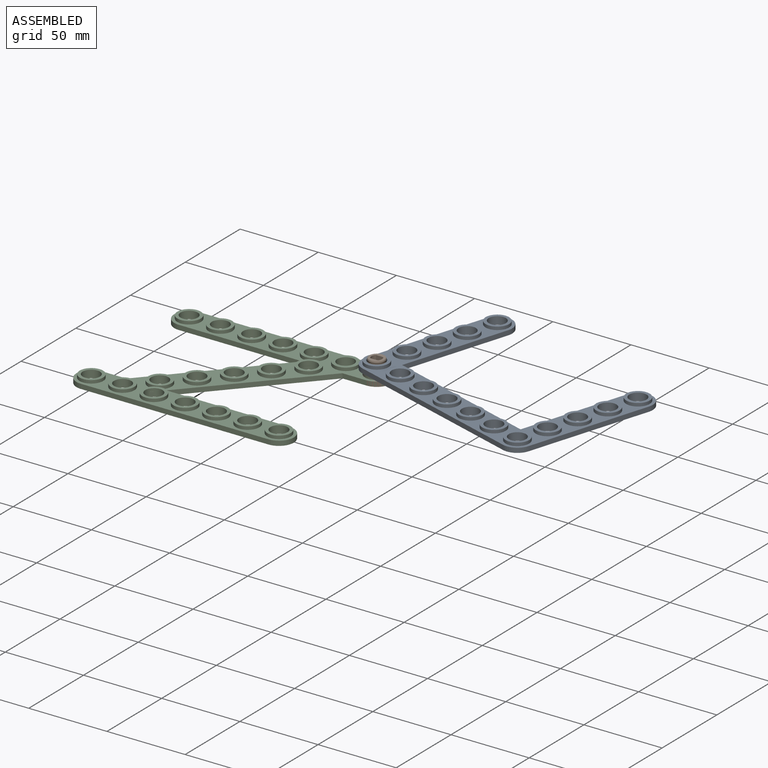
[diagram: assembled view]
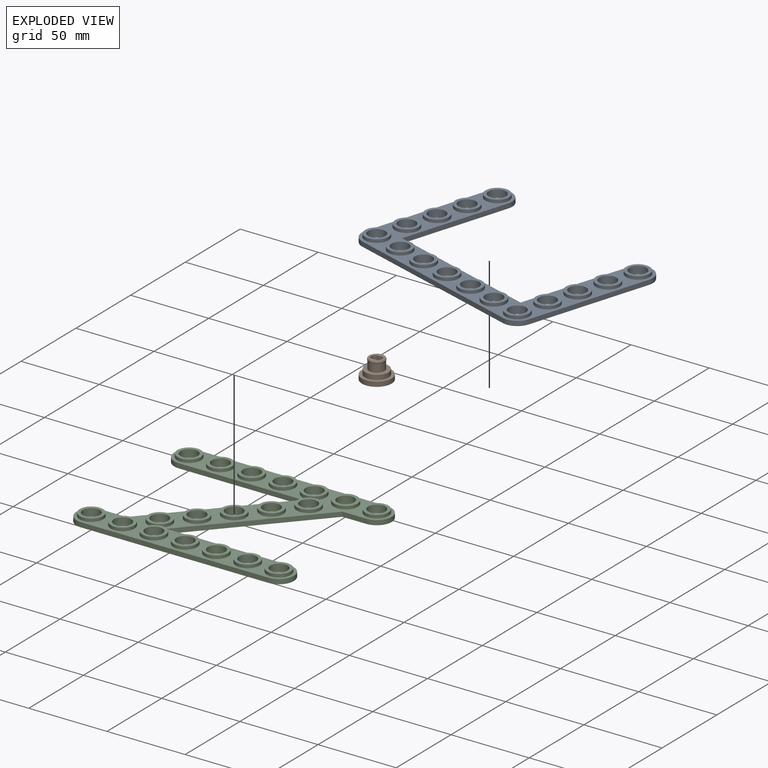
[diagram: exploded view]
GUIDED TOUR — MATED ASSEMBLY (Onshape document 58288718367dbf10c56b6f8b, AutoMate assembly 58288718367dbf10c56b6f8b_a2710cffdd7be8ced2f15b39_a3ffcce9a0fe1f9f7f66f083_default)

This assembly has 3 components, labeled P0..P2 below (a component is one placed occurrence of a part; the same part can appear more than once), held together by 2 mates. A mate is a constraint between two components; its type names the relative motion it leaves free:
  FASTENED — locks the two components together rigidly (no relative motion),
  REVOLUTE — leaves rotation about the listed axis free (a hinge).
Axis/direction vectors are unit vectors and 'through' points are millimeter coordinates, both in the assembly's world frame.

MATES
  1. FASTENED "Fastened 1": P2 <-> P1, direction (0.000, 0.000, -1.000) through (120.00, 89.30, 0.00) mm
  2. REVOLUTE "Revolute 1": P1 <-> P0, axis (0.000, 0.000, 1.000) through (120.00, 89.30, 6.00) mm

ASSEMBLY ORDER
  1. P1 — the base component [order verified]
  2. P0 [order verified]
  3. P2 [order verified]
(P0, P2 verified with a relaxed clearance tolerance: the source model stores slight part interference there.)
Order-tag legend:
  [order verified] — this step's position reverses a verified removal order: the component was checked to insert without passing through the ones already placed.

Of the 3 components, 1 carries the full construction recipe — the FeatureScript program that regenerates the part's solid from scratch; the rest are supplied as boundary geometry only.
Each toured component is shown spotlighted twice — in the assembled view, then in the exploded view, where a leader line traces a displaced component back to its assembled socket (saturated green if recipe-attached, orange if geometry-only; every other component desaturated gray) — followed by its recipe or geometry summary and the mates that hold it.
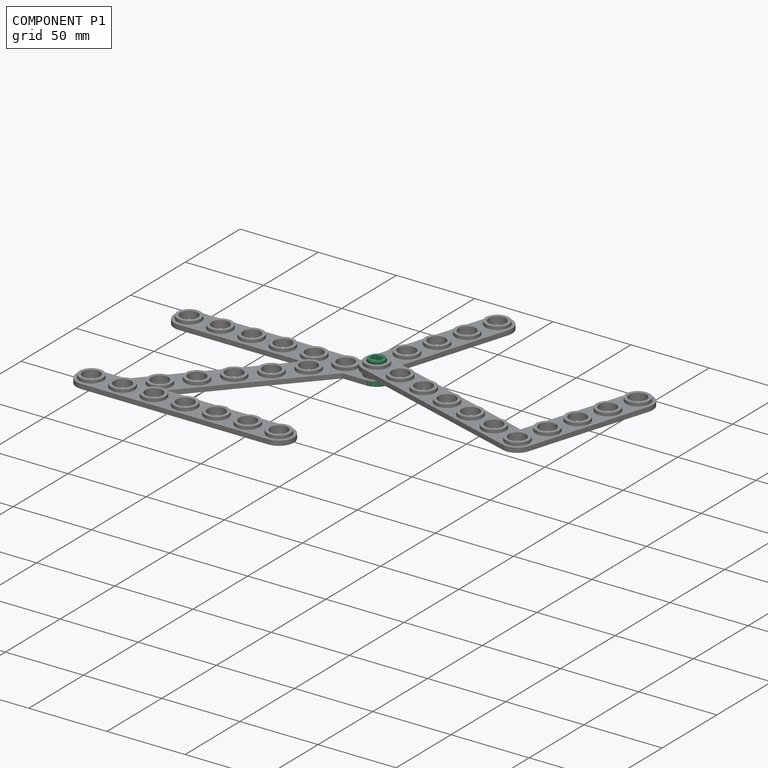
[diagram: component P1 — assembled]
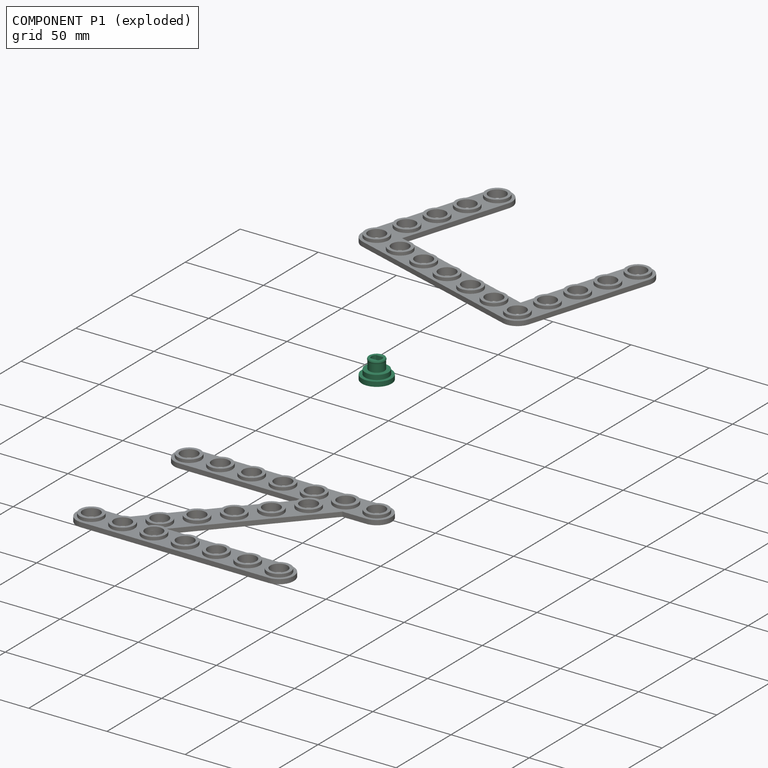
[diagram: component P1 — exploded]
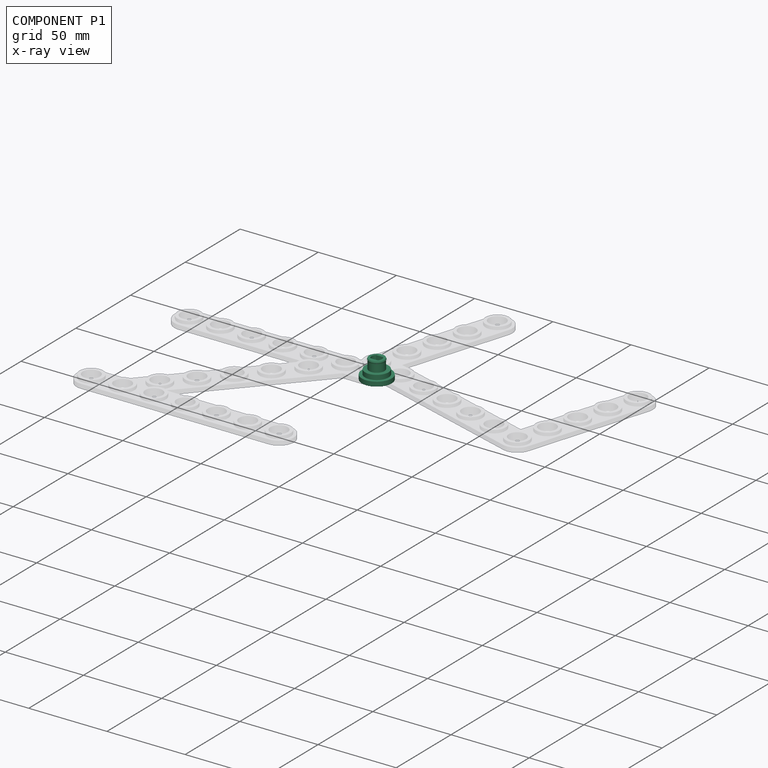
[diagram: component P1 — x-ray view]
COMPONENT P1 — recipe-attached (CADFS 00326685, mesh-verified: the recipe's output STEP matches this component's geometry to below the mesh-comparison resolution (tessellation chordal tolerance ~0.0444 mm)).
Held by: FASTENED mate "Fastened 1" to P2; REVOLUTE mate "Revolute 1" to P0.
Construction recipe (FeatureScript — the CAD program that rebuilds this solid; sketch coordinates are in the units given by the * unit suffixes, e.g. mm):

FeatureScript 1549;
import(path : "onshape/std/geometry.fs", version : "1549.0");
import(path : "onshape/std/common.fs", version : "1549.0");
const mm = millimeter;
const VERTEX = EntityType.VERTEX;
const EDGE = EntityType.EDGE;
const FACE = EntityType.FACE;
const BODY = EntityType.BODY;
function v(x, y){return vector(x, y);}
function OD(order){return orderDisambiguation(order);}
function OSD(set){return originalSetDisambiguation(set);}
function TD(topology){return topologyDisambiguation(topology);}
function TDD(query){return trueDependencyDisambiguation(query);}
function sQuery(a, b, c) {return sketchEntityQuery(a, b, c);}

annotation { "Feature Type Name" : "Feature", "Feature Type Description" : "" }
export const myFeature = defineFeature(function(context is Context, id is Id, definition is map)
    precondition{}
    {
        {
            assignVariable(context, id + "F0", {"name" : "e", "anyValue" : 3});
        }
        {
            assignVariable(context, id + "F1", {"name" : "h1", "anyValue" : 3});
        }
        {
            assignVariable(context, id + "F2", {"name" : "h2", "anyValue" : 6.5});
        }
        {
            var Q0;
            Q0=qCreatedBy(makeId("Top.planeOp"),FACE);
            var sketch = newSketch(context, id + "F3", { "sketchPlane" : qUnion([Q0])});
            skCircle(sketch, "E0", {"center": v(0, 0) * mm, "radius": 9.5 * mm});
            skCircle(sketch, "E1", {"center": v(0, 0) * mm, "radius": 7.5 * mm});
            skCircle(sketch, "E2", {"center": v(0, 0) * mm, "radius": 4.9 * mm});
            skArc(sketch, "E3", {"start": v(-2.28, 2.45) * mm, "mid": v(-3.35, 0) * mm, "end": v(-2.28, -2.45) * mm});
            skLineSegment(sketch, "E4.bottom", {"start": v(2.28, -2.45) * mm, "end": v(-2.28, -2.45) * mm});
            skLineSegment(sketch, "E4.top", {"start": v(2.28, 2.45) * mm, "end": v(-2.28, 2.45) * mm});
            skArc(sketch, "E5.trimOffspring", {"start": v(2.28, -2.45) * mm, "mid": v(3.35, 0) * mm, "end": v(2.28, 2.45) * mm});
            skPoint(sketch, "E6.orphan", {"position": v(3.35, 2.45) * mm});
            skPoint(sketch, "E7.orphan", {"position": v(3.35, -2.45) * mm});
            skPoint(sketch, "E8.orphan", {"position": v(-3.35, -2.45) * mm});
            skPoint(sketch, "E9.orphan", {"position": v(-3.35, 2.45) * mm});
            skSolve(sketch);
        }
        {
            var Q0;
            Q0=makeQuery(id+"F3.imprint","IMPRINT",FACE,{"disambiguationData":[TD([[makeQuery(id+"F3.imprint","IMPRINT",EDGE,{"derivedFrom":sQuery(id+"F3.wireOp",EDGE,"E0")}),1.0]])]});
            var Q1;
            Q1=makeQuery(id+"F3.imprint","IMPRINT",FACE,{"disambiguationData":[TD([[makeQuery(id+"F3.imprint","IMPRINT",EDGE,{"derivedFrom":sQuery(id+"F3.wireOp",EDGE,"E1")}),1.0]])]});
            var Q2;
            Q2=makeQuery(id+"F3.imprint","IMPRINT",FACE,{"disambiguationData":[TD([[makeQuery(id+"F3.imprint","IMPRINT",EDGE,{"derivedFrom":sQuery(id+"F3.wireOp",EDGE,"E2")}),1.0]])]});
            extrude(context, id + "F4", {"entities" : qUnion([Q0, Q1, Q2]), "depth" : (getVariable(context, 'e')) * mm});
        }
        {
            var Q0;
            Q0=makeQuery(id+"F3.imprint","IMPRINT",FACE,{"disambiguationData":[TD([[makeQuery(id+"F3.imprint","IMPRINT",EDGE,{"derivedFrom":sQuery(id+"F3.wireOp",EDGE,"E1")}),1.0]])]});
            var Q1;
            Q1=makeQuery(id+"F3.imprint","IMPRINT",FACE,{"disambiguationData":[TD([[makeQuery(id+"F3.imprint","IMPRINT",EDGE,{"derivedFrom":sQuery(id+"F3.wireOp",EDGE,"E2")}),1.0]])]});
            extrude(context, id + "F5", {"entities" : qUnion([Q0, Q1]), "operationType" : NewBodyOperationType.ADD, "depth" : (getVariable(context, 'e') + getVariable(context, 'h1')) * mm});
        }
        {
            var Q0;
            Q0=makeQuery(id+"F3.imprint","IMPRINT",FACE,{"disambiguationData":[TD([[makeQuery(id+"F3.imprint","IMPRINT",EDGE,{"derivedFrom":sQuery(id+"F3.wireOp",EDGE,"E2")}),1.0]])]});
            extrude(context, id + "F6", {"entities" : qUnion([Q0]), "operationType" : NewBodyOperationType.ADD, "depth" : (getVariable(context, 'e') + getVariable(context, 'h1') + getVariable(context, 'h2')) * mm});
        }
        {
            var Q0;
            Q0=qCreatedBy(makeId("Front.planeOp"),FACE);
            var sketch = newSketch(context, id + "F7", { "sketchPlane" : qUnion([Q0])});
            skLineSegment(sketch, "E10", {"start": v(0, 0) * mm, "end": v(0, 17.5) * mm, "construction": true});
            skLineSegment(sketch, "E11", {"start": v(-4.9, 6) * mm, "end": v(-4.9, 12.5) * mm});
            skLineSegment(sketch, "E12", {"start": v(4.9, 12.5) * mm, "end": v(4.9, 6) * mm});
            skLineSegment(sketch, "E13.bottom", {"start": v(4.9, 12.5) * mm, "end": v(5.15, 12.5) * mm, "construction": true});
            skLineSegment(sketch, "E13.top", {"start": v(4.9, 11) * mm, "end": v(5.15, 11) * mm, "construction": true});
            skLineSegment(sketch, "E13.left", {"start": v(4.9, 12.5) * mm, "end": v(4.9, 11) * mm, "construction": true});
            skLineSegment(sketch, "E13.right", {"start": v(5.15, 12.5) * mm, "end": v(5.15, 11) * mm, "construction": true});
            skPoint(sketch, "E14", {"position": v(5.15, 11.75) * mm});
            skLineSegment(sketch, "E15", {"start": v(4.9, 12.5) * mm, "end": v(5.15, 11.75) * mm});
            skLineSegment(sketch, "E16", {"start": v(5.15, 11.75) * mm, "end": v(4.9, 11) * mm});
            skLineSegment(sketch, "E17", {"start": v(4.9, 11) * mm, "end": v(4.9, 12.5) * mm});
            skSolve(sketch);
        }
        {
            var Q0;
            Q0=makeQuery(id+"F7.imprint","IMPRINT",FACE,{"disambiguationData":[TD([[makeQuery(id+"F7.imprint","IMPRINT",EDGE,{"derivedFrom":sQuery(id+"F7.wireOp",EDGE,"E15")}),-1.0]])]});
            var Q1;
            Q1=sQuery(id+"F7.wireOp",EDGE,"E10");
            revolve(context, id + "F8", {"operationType" : NewBodyOperationType.ADD, "entities" : qUnion([Q0]), "axis" : qUnion([Q1]), "revolveType" : RevolveType.FULL});
        }
        {
            var Q0;
            Q0=makeQuery(id+"F6.opExtrude","CAP_FACE",FACE,{"disambiguationData":[OSD([sQuery(id+"F3.wireOp",EDGE,"E2"),sQuery(id+"F3.wireOp",EDGE,"E3"),sQuery(id+"F3.wireOp",EDGE,"E4.bottom"),sQuery(id+"F3.wireOp",EDGE,"E4.top"),sQuery(id+"F3.wireOp",EDGE,"E5.trimOffspring")])],"isStart":false});
            cPlane(context, id + "F9", {"entities" : qUnion([Q0]), "cplaneType" : CPlaneType.OFFSET, "offset" : 0 * mm, "width" : 150 * mm, "height" : 150 * mm});
        }
    });
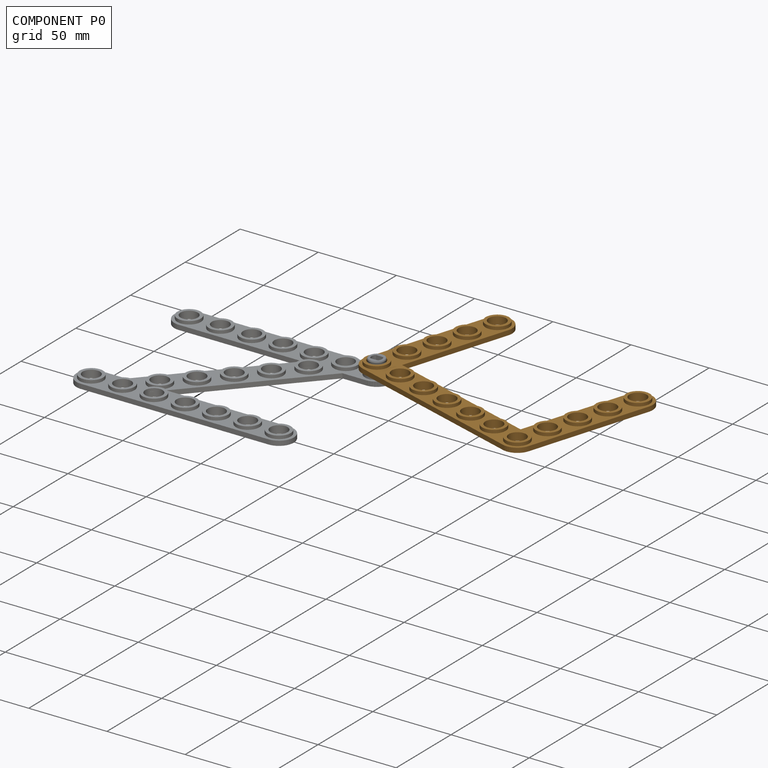
[diagram: component P0 — assembled]
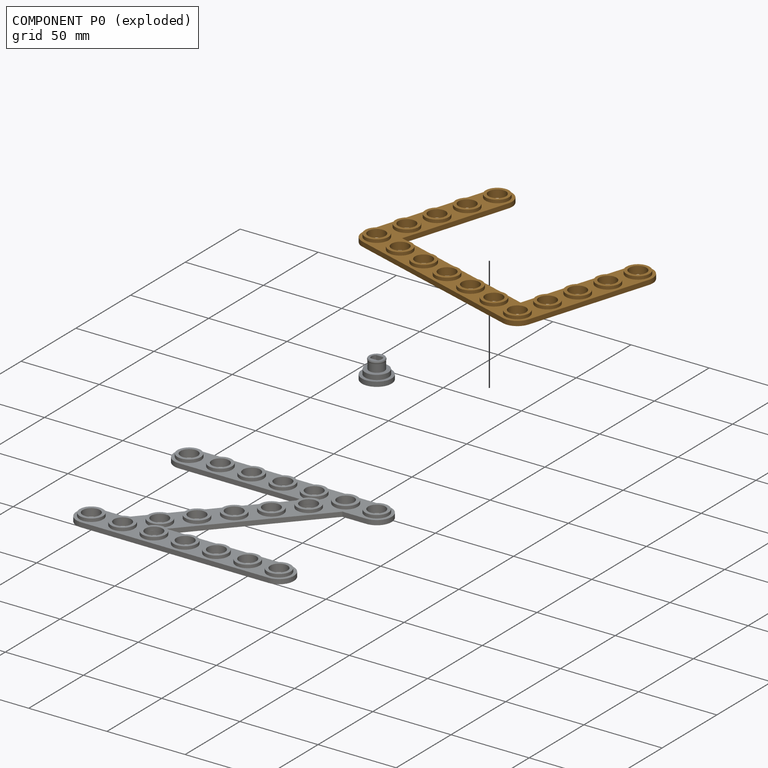
[diagram: component P0 — exploded]
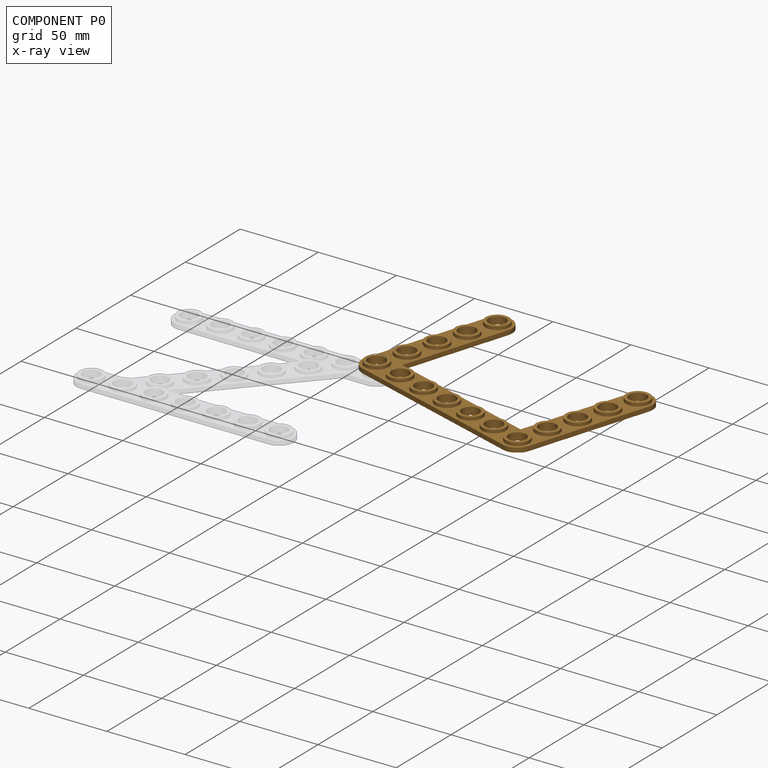
[diagram: component P0 — x-ray view]
COMPONENT P0 — geometry summary (no construction recipe available for this part):
  bounding box: 139.0 x 99.0 x 5.0 mm
  B-rep topology: 1 solid, 57 faces, 240 edges
  volume: 14868 mm^3 (22% of its bounding box)
  symmetry: mirror-symmetric across its x mid-plane
Held by: REVOLUTE mate "Revolute 1" to P1.
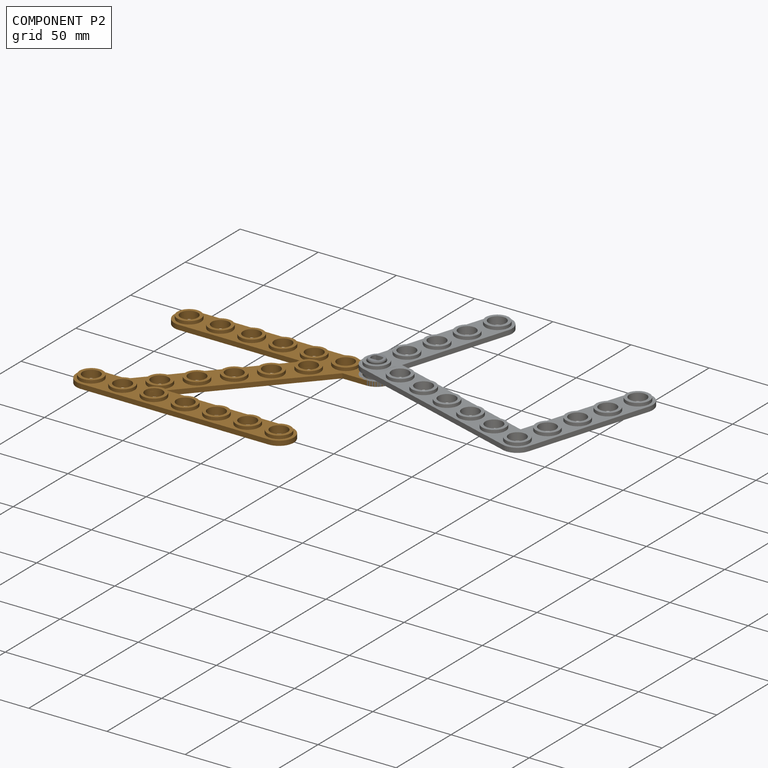
[diagram: component P2 — assembled]
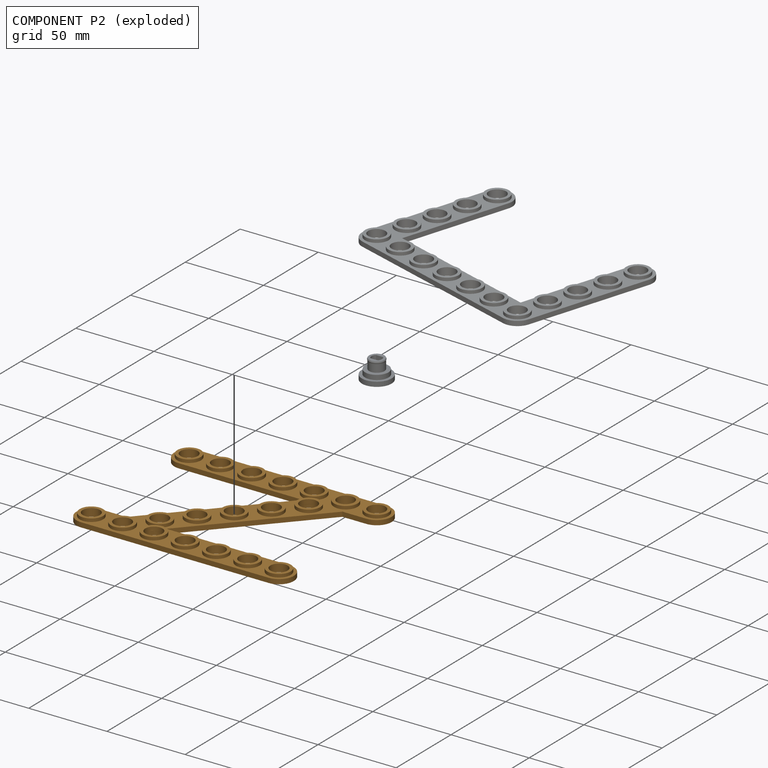
[diagram: component P2 — exploded]
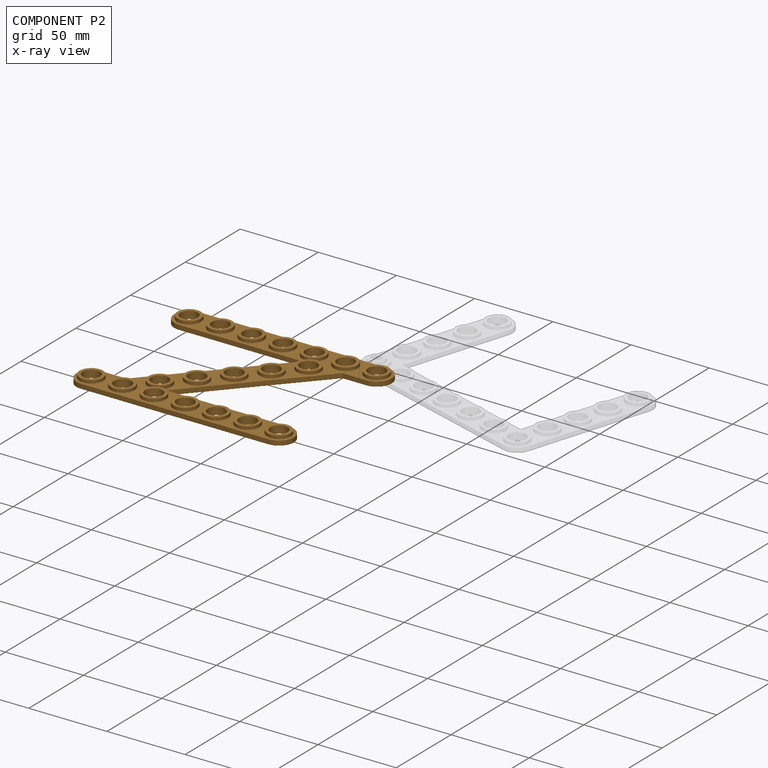
[diagram: component P2 — x-ray view]
COMPONENT P2 — geometry summary (no construction recipe available for this part):
  bounding box: 139.0 x 108.3 x 5.0 mm
  B-rep topology: 1 solid, 77 faces, 336 edges
  volume: 18492 mm^3 (25% of its bounding box)
  symmetry: 2-fold rotationally symmetric about the z axis
Held by: FASTENED mate "Fastened 1" to P1.
PROVENANCE & LICENSES
Assembly (occurrences, transforms, mates, per-part STEP geometry): AutoMate dataset, Zenodo record 7776208, CC0.
Construction recipes: CADFS (HuggingFace VladPyatov/CADFS, CC-BY-4.0, layered over the ABC dataset), FeatureScript reconstruction programs keyed by ABC model id.
Join: ABC meta listings map ABC model id -> Onshape documentId; within a shared document, parts are matched by geometric signature (bounding-box dims + volume at 0.1% relative tolerance, exact B-rep face/solid counts).
Verification: 1 of this assembly's 3 components carries a recipe attachment, and every attachment is mesh-verified: the CADFS STEP and the AutoMate member STEP were compared as meshes in their shared local frame (symmetric sampled-point-to-mesh distance); worst across the 1 attachment: below the mesh-comparison resolution (tessellation chordal tolerance ~0.0444 mm) on a 30 mm part.
Renders: orthographic iso camera (az 35 / el 25); the floor grid conveys scale (grid pitch printed in each image; no ruler). In the exploded view each component is displaced by its stored offset vector: the offsets alone carry the explosion direction (mate normal/axis signs are not orientation cues and do not encode it), and separation distances are assigned per mate-chain, not proportionally to assembly-order depth.
